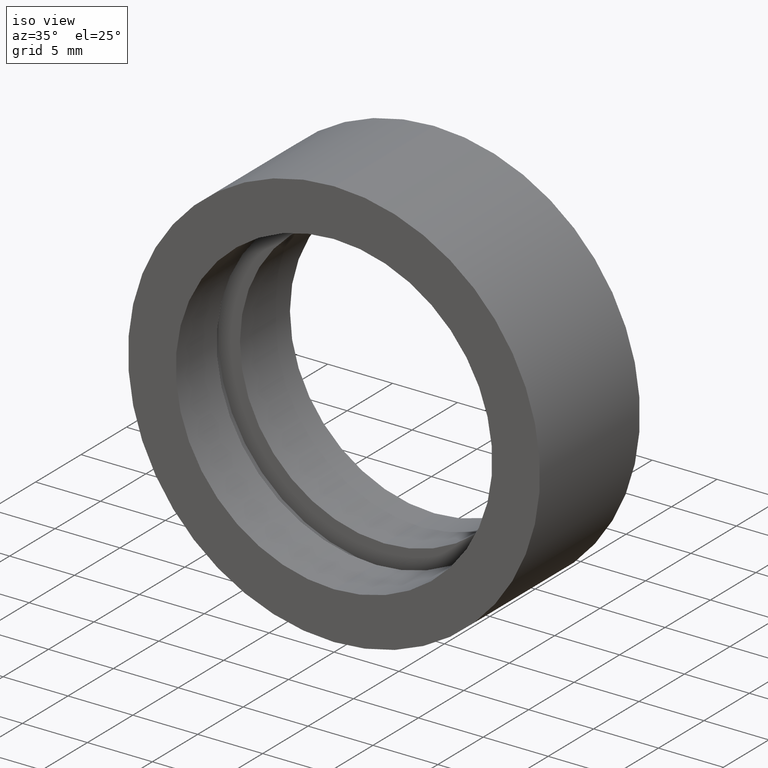
[diagram: clean part render]
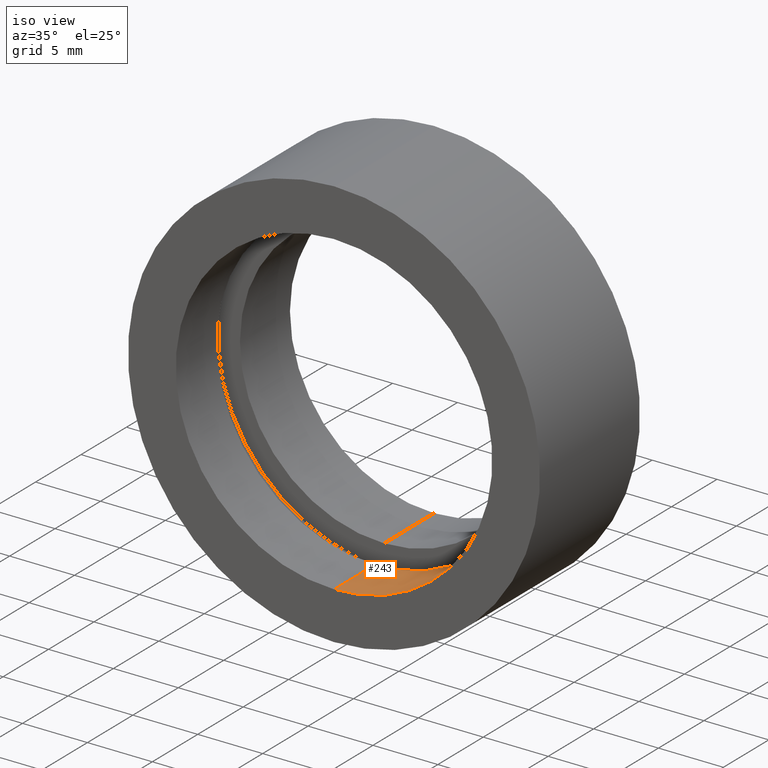
[diagram: same view with one face highlighted and labeled with its STEP entity id]
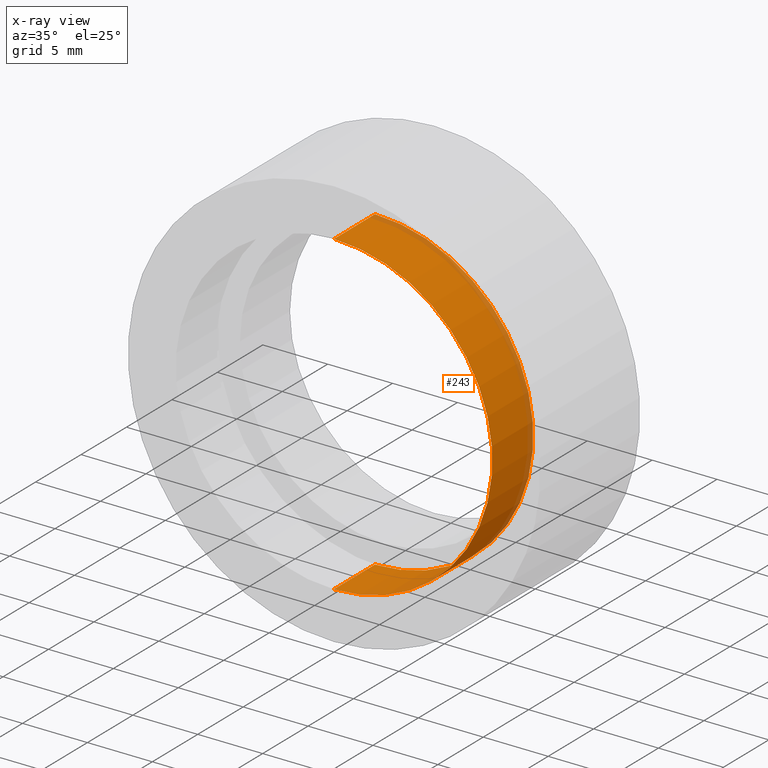
[diagram: x-ray of the same camera — body ghosted, the highlighted face saturated]
A machine part, iso view. The second image highlights one B-rep face of the part: STEP entity #243.
The next image is the same camera in x-ray: the body ghosted, the highlighted face saturated — about 11% of this face is hidden behind the body in this view.
In plain terms, the highlighted cylindrical surface (partial cylindrical patch) has radius 12.2 mm, axis along (-0, 1, -0).
Its self-contained STEP definition (entity closure, byte-faithful):
#5 = ORIENTED_EDGE ( 'NONE', *, *, #259, .T. ) ;
#6 = CARTESIAN_POINT ( 'NONE',  ( 1.494069094959771600E-015, 0.0000000000000000000, -12.20000000000000600 ) ) ;
#20 = DIRECTION ( 'NONE',  ( -0.0000000000000000000, 1.000000000000000000, -0.0000000000000000000 ) ) ;
#31 = AXIS2_PLACEMENT_3D ( 'NONE', #175, #20, #425 ) ;
#38 = CARTESIAN_POINT ( 'NONE',  ( 1.494069094959771600E-015, 4.499999999999997300, -12.20000000000000600 ) ) ;
#39 = VERTEX_POINT ( 'NONE', #220 ) ;
#41 = CARTESIAN_POINT ( 'NONE',  ( 0.0000000000000000000, 60.02082041425541100, 12.20000000000000600 ) ) ;
#64 = CARTESIAN_POINT ( 'NONE',  ( 0.0000000000000000000, 0.0000000000000000000, 12.20000000000000600 ) ) ;
#73 = ORIENTED_EDGE ( 'NONE', *, *, #431, .F. ) ;
#76 = DIRECTION ( 'NONE',  ( -0.0000000000000000000, 1.000000000000000000, -0.0000000000000000000 ) ) ;
#103 = CARTESIAN_POINT ( 'NONE',  ( 0.0000000000000000000, 0.0000000000000000000, 0.0000000000000000000 ) ) ;
#119 = FACE_OUTER_BOUND ( 'NONE', #376, .T. ) ;
#125 = VERTEX_POINT ( 'NONE', #6 ) ;
#137 = CARTESIAN_POINT ( 'NONE',  ( 0.0000000000000000000, 4.499999999999997300, 0.0000000000000000000 ) ) ;
#140 = CIRCLE ( 'NONE', #151, 12.20000000000000600 ) ;
#141 = VERTEX_POINT ( 'NONE', #64 ) ;
#146 = DIRECTION ( 'NONE',  ( -0.0000000000000000000, 1.000000000000000000, -0.0000000000000000000 ) ) ;
#151 = AXIS2_PLACEMENT_3D ( 'NONE', #103, #324, #334 ) ;
#175 = CARTESIAN_POINT ( 'NONE',  ( 0.0000000000000000000, 60.02082041425541100, 0.0000000000000000000 ) ) ;
#176 = EDGE_CURVE ( 'NONE', #39, #413, #400, .T. ) ;
#182 = VECTOR ( 'NONE', #146, 1000.000000000000000 ) ;
#199 = ORIENTED_EDGE ( 'NONE', *, *, #176, .T. ) ;
#215 = LINE ( 'NONE', #396, #366 ) ;
#220 = CARTESIAN_POINT ( 'NONE',  ( 0.0000000000000000000, 4.499999999999997300, 12.20000000000000600 ) ) ;
#243 = ADVANCED_FACE ( 'NONE', ( #119 ), #331, .F. ) ;
#259 = EDGE_CURVE ( 'NONE', #141, #39, #419, .T. ) ;
#277 = DIRECTION ( 'NONE',  ( 0.0000000000000000000, 0.0000000000000000000, 1.000000000000000000 ) ) ;
#281 = AXIS2_PLACEMENT_3D ( 'NONE', #137, #428, #277 ) ;
#324 = DIRECTION ( 'NONE',  ( -0.0000000000000000000, 1.000000000000000000, -0.0000000000000000000 ) ) ;
#331 = CYLINDRICAL_SURFACE ( 'NONE', #31, 12.20000000000000600 ) ;
#334 = DIRECTION ( 'NONE',  ( 0.0000000000000000000, 0.0000000000000000000, 1.000000000000000000 ) ) ;
#342 = ORIENTED_EDGE ( 'NONE', *, *, #404, .F. ) ;
#366 = VECTOR ( 'NONE', #76, 1000.000000000000000 ) ;
#376 = EDGE_LOOP ( 'NONE', ( #342, #73, #5, #199 ) ) ;
#396 = CARTESIAN_POINT ( 'NONE',  ( 1.494069094959771600E-015, 60.02082041425541100, -12.20000000000000600 ) ) ;
#400 = CIRCLE ( 'NONE', #281, 12.20000000000000600 ) ;
#404 = EDGE_CURVE ( 'NONE', #125, #413, #215, .T. ) ;
#413 = VERTEX_POINT ( 'NONE', #38 ) ;
#419 = LINE ( 'NONE', #41, #182 ) ;
#425 = DIRECTION ( 'NONE',  ( 0.0000000000000000000, 0.0000000000000000000, 1.000000000000000000 ) ) ;
#428 = DIRECTION ( 'NONE',  ( -0.0000000000000000000, 1.000000000000000000, -0.0000000000000000000 ) ) ;
#431 = EDGE_CURVE ( 'NONE', #141, #125, #140, .T. ) ;